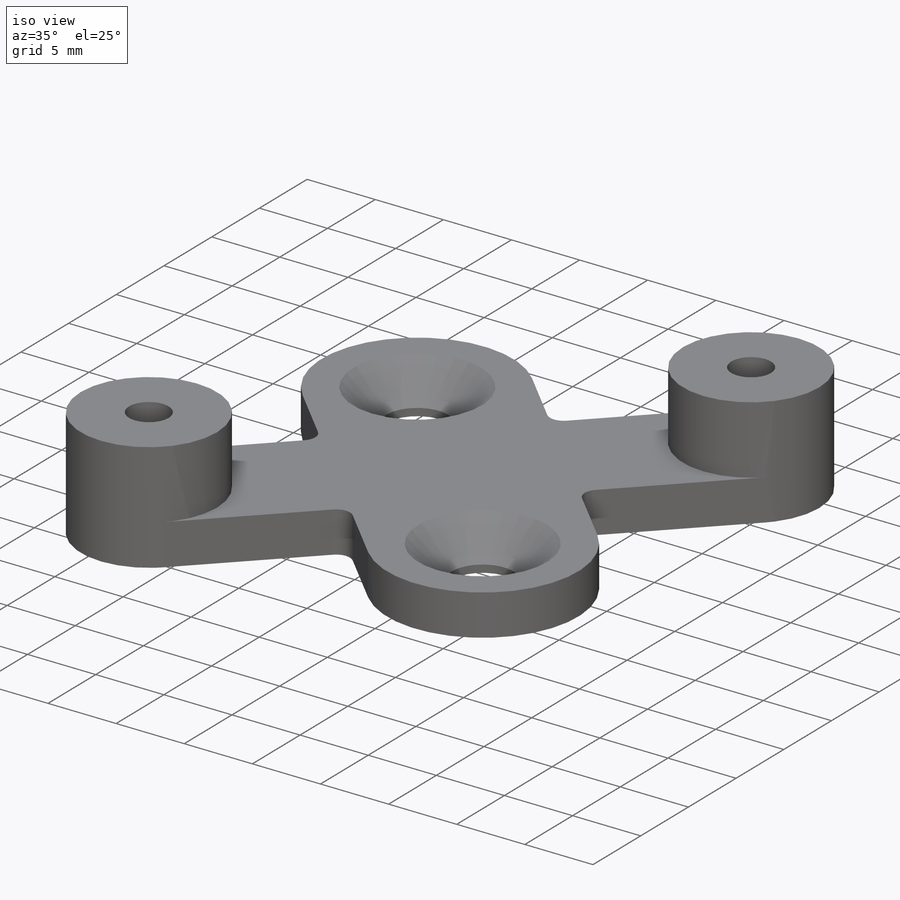
[diagram: iso view]
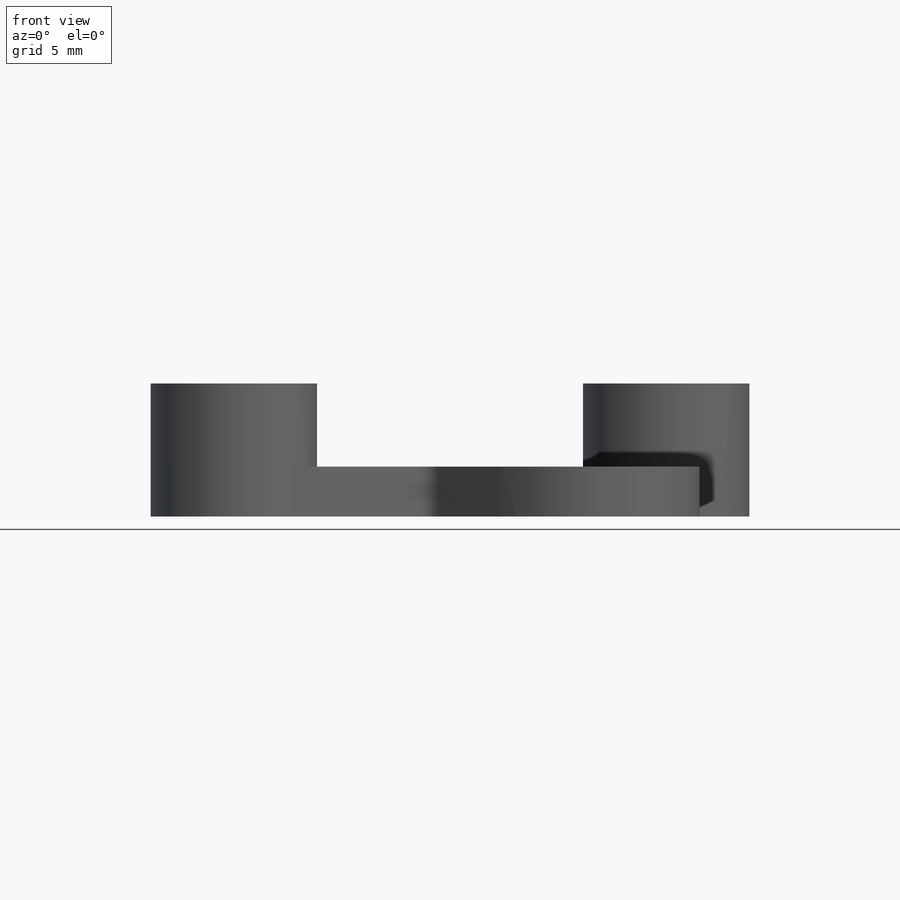
[diagram: front view]
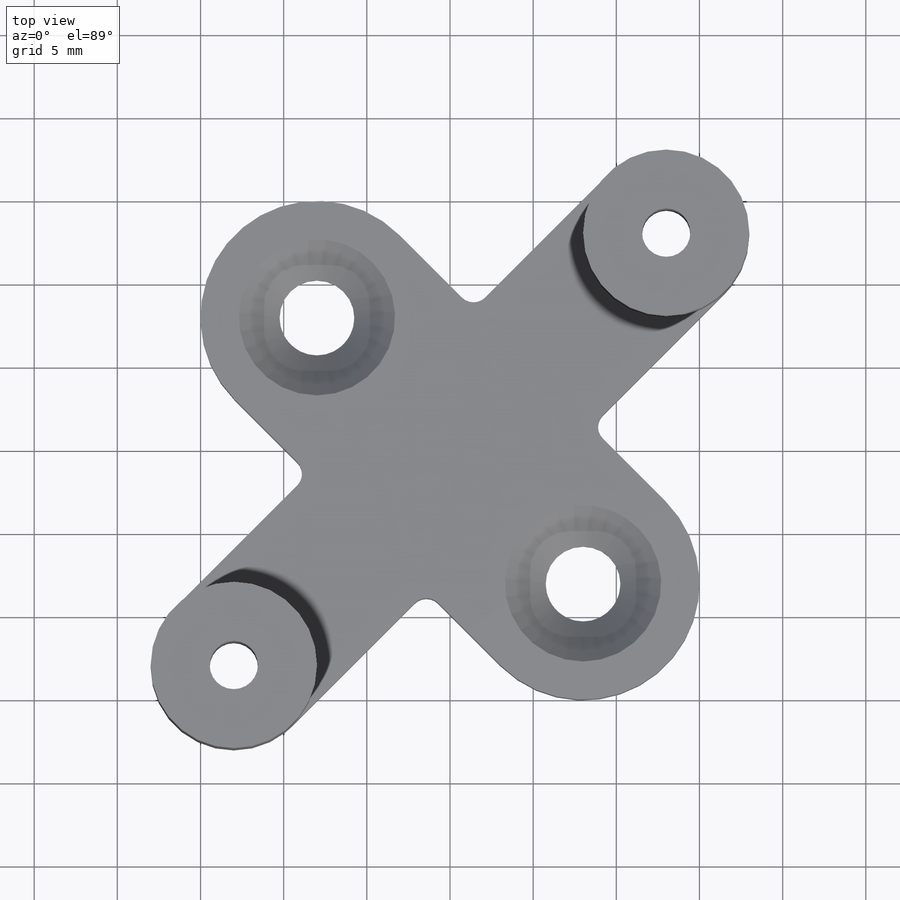
[diagram: top view]
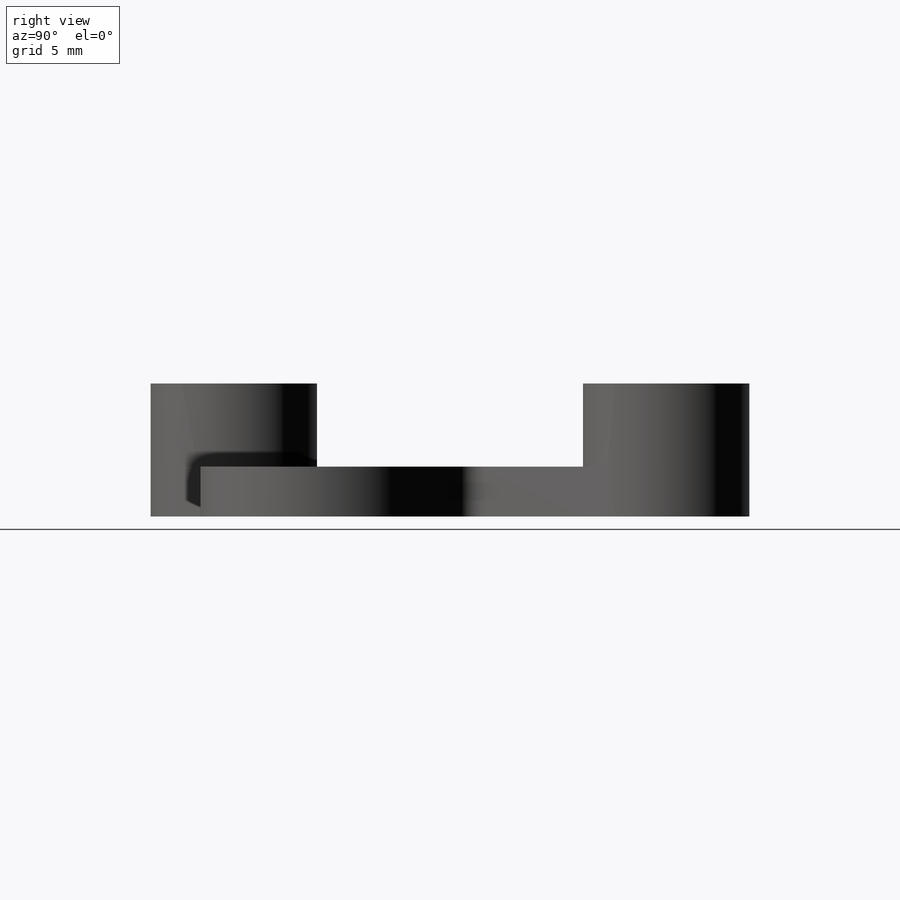
[diagram: right view]
SOLIDWORKS PART (.sldprt)
format: sldprt  version: not decoded by parser v0  size: 242,688 bytes
history: native  units: mm
features: sketch x5, extrude x2, material x1, fillet x1, hole x1, cut_extrude x1 (+13 scaffold rows collapsed)
feature tree (24):
  scaffold x13  (default folders/planes/origin — collapsed)
  material  "Material <not specified>"
  sketch  "Sketch1"  dims[c1.D2=5.0mm c1.D4=7.0mm c1.D1=45.0deg c2.D2=45.0deg c2.D3=26.0mm c2.D5=16.0mm c2.D1=45.0deg]
  extrude  "Boss-Extrude1"  Depth=3mm
  fillet  "Fillet1"  Radius=1mm
  hole  "CSK for M4 Countersunk Flat Head Screw1"  Diameter=4.5mm Depth=3mm
  sketch  "Sketch3"
  sketch  "Sketch2"  dims[hole-wizard template sketch: 55 standard entries collapsed; hole parameters kept: c17.Thru Hole Depth=3.0mm c17.Near C'Sink Dia.=9.4mm c17.D4=~3.666174mm c17.Near C'Sink Angle=90.0deg]
  sketch  "Sketch4"
  extrude  "Boss-Extrude2"  Depth=5mm
  sketch  "Sketch5"  dims[D1=2.9mm]
  cut_extrude  "Cut-Extrude1"  [1 undecoded]
decode coverage: 7 of 10 modeling features carry decoded parameters
note: ~ marks probable driven/reference dimensions
note: 1 parameter value undecoded
note: suppression state not decoded; provenance and decode notes live in map.json
